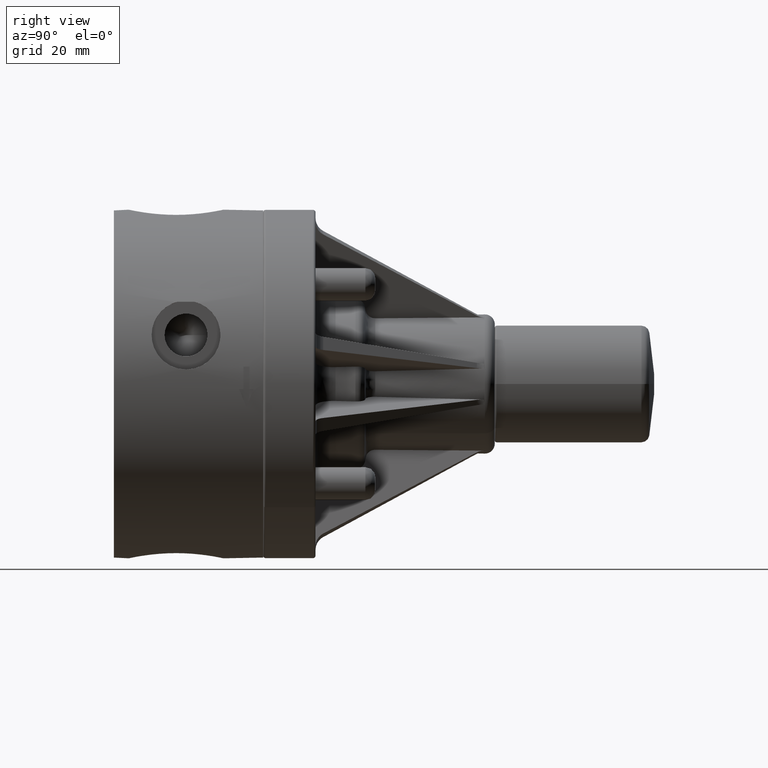
[diagram: clean part render]
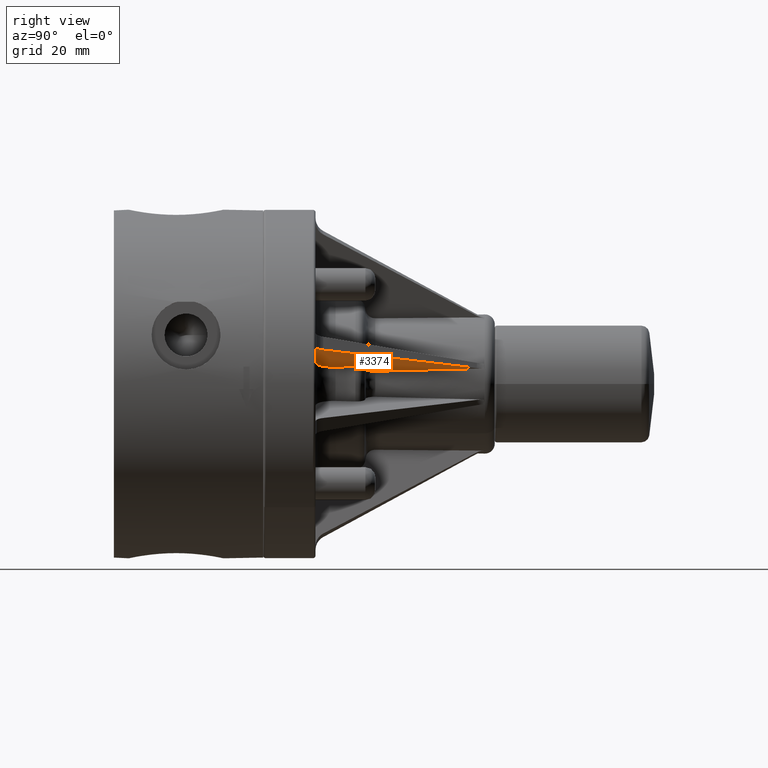
[diagram: same view with one face highlighted and labeled with its STEP entity id]
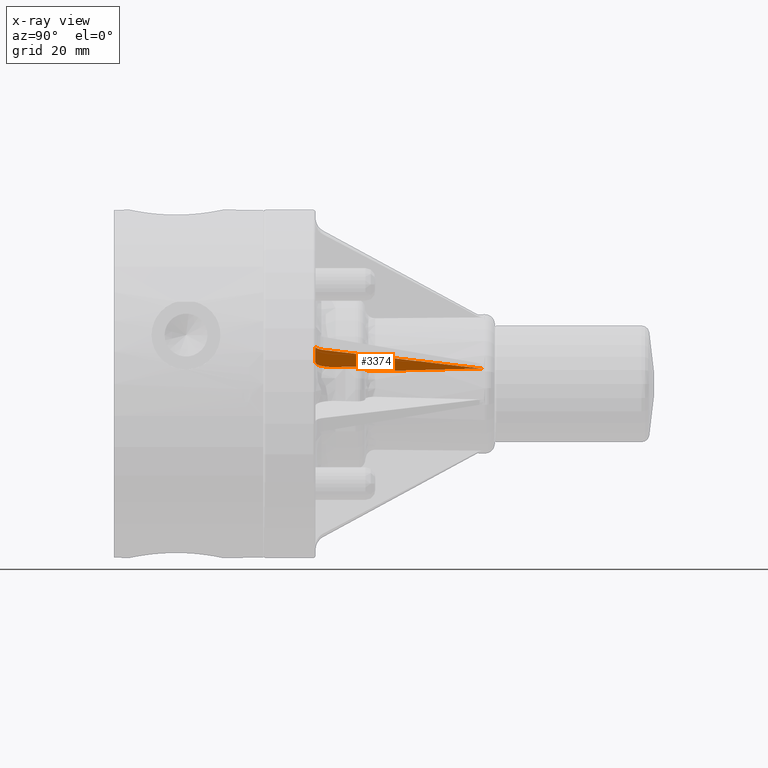
[diagram: x-ray of the same camera — body ghosted, the highlighted face saturated]
A machine part, right view. The second image highlights one B-rep face of the part: STEP entity #3374.
The next image is the same camera in x-ray: the body ghosted, the highlighted face saturated — about 0% of this face is hidden behind the body in this view.
In plain terms, the highlighted planar face has unit normal (0.2587, 0.0262, -0.9656).
Its self-contained STEP definition (entity closure, byte-faithful):
#1554=CARTESIAN_POINT('',(0.682343417455202,3.716826314709518,0.156228872669417));
#1555=VERTEX_POINT('',#1554);
#1563=CARTESIAN_POINT('',(0.688162459202932,2.625000000000000,0.128189039093734));
#1564=VERTEX_POINT('',#1563);
#1565=CARTESIAN_POINT('',(9.744670E-016,4.698192150791793,4.177302E-016));
#1566=DIRECTION('',(0.258730354279914,0.026176948307873,-0.965594827632935));
#1567=DIRECTION('',(0.006775092764742,-0.999657324975557,-0.025284990424009));
#1568=AXIS2_PLACEMENT_3D('',#1565,#1566,#1567);
#1569=ELLIPSE('',#1568,26.741085009877150,0.700000000000000);
#1570=EDGE_CURVE('',#1555,#1564,#1569,.T.);
#2542=CARTESIAN_POINT('',(0.883841446146808,2.225000000000000,0.169777201276020));
#2543=VERTEX_POINT('',#2542);
#2551=CARTESIAN_POINT('',(1.078482179354141,2.024999999999999,0.216509096380593));
#2552=VERTEX_POINT('',#2551);
#2553=CARTESIAN_POINT('',(0.883841446146808,2.225000000000000,0.169777201276020));
#2554=CARTESIAN_POINT('',(0.883902519870662,2.212668316870702,0.169459258183504));
#2555=CARTESIAN_POINT('',(0.885146446709306,2.199198462285150,0.169427404185679));
#2556=CARTESIAN_POINT('',(0.890355738030310,2.172815448862290,0.170107995041851));
#2557=CARTESIAN_POINT('',(0.894321182906108,2.159902306465821,0.170820461882912));
#2558=CARTESIAN_POINT('',(0.903573620516858,2.137104256549482,0.172681597667169));
#2559=CARTESIAN_POINT('',(0.909713059443535,2.125120164942666,0.174001770710345));
#2560=CARTESIAN_POINT('',(0.924291955808276,2.102747807437338,0.177301667193146));
#2561=CARTESIAN_POINT('',(0.932731307186917,2.092359467939641,0.179281360218987));
#2562=CARTESIAN_POINT('',(0.949711267464534,2.074900833874389,0.183357829214253));
#2563=CARTESIAN_POINT('',(0.959817953312510,2.066224809320838,0.185830703442089));
#2564=CARTESIAN_POINT('',(0.981558618551827,2.051263136446866,0.191250491258328));
#2565=CARTESIAN_POINT('',(0.993192489485628,2.044977318333860,0.194197371182600));
#2566=CARTESIAN_POINT('',(1.015325377913796,2.035518886255935,0.199871445877171));
#2567=CARTESIAN_POINT('',(1.027864891449007,2.031478534624186,0.203121865839907));
#2568=CARTESIAN_POINT('',(1.053466908795196,2.026219153416959,0.209839325671551));
#2569=CARTESIAN_POINT('',(1.066529389659599,2.025000000000000,0.213306356034641));
#2570=CARTESIAN_POINT('',(1.078482179354141,2.025000000000000,0.216509096380593));
#2571=B_SPLINE_CURVE_WITH_KNOTS('',3,(#2553,#2554,#2555,#2556,#2557,#2558,#2559,#2560,#2561,#2562,#2563,#2564,#2565,#2566,#2567,#2568,#2569,#2570),.UNSPECIFIED.,.F.,.U.,(4,2,2,2,2,2,2,2,4),(1.506165114365754,1.600164918770038,1.694164723174322,1.788183305215149,1.882201887255975,1.976343395083373,2.070484902910770,2.164778123977573,2.259071345044376),.UNSPECIFIED.);
#2572=EDGE_CURVE('',#2543,#2552,#2571,.T.);
#2614=CARTESIAN_POINT('',(0.882836101336889,2.425000000000000,0.174929752118620));
#2615=VERTEX_POINT('',#2614);
#2623=CARTESIAN_POINT('',(9.744670E-016,4.698192150791791,4.177302E-016));
#2624=DIRECTION('',(0.258730354279914,0.026176948307873,-0.965594827632935));
#2625=DIRECTION('',(0.006775092764742,-0.999657324975557,-0.025284990424009));
#2626=AXIS2_PLACEMENT_3D('',#2623,#2624,#2625);
#2627=ELLIPSE('',#2626,34.381395012699173,0.899999999999999);
#2628=EDGE_CURVE('',#2615,#2543,#2627,.T.);
#2648=CARTESIAN_POINT('',(0.785511766587942,2.525000000000000,0.151562741305010));
#2649=VERTEX_POINT('',#2648);
#2657=CARTESIAN_POINT('',(0.785511766587942,2.525000000000000,0.151562741305010));
#2658=CARTESIAN_POINT('',(0.797468156378785,2.525000000000000,0.154766446293858));
#2659=CARTESIAN_POINT('',(0.811560618327809,2.522107735331143,0.158464101778168));
#2660=CARTESIAN_POINT('',(0.833694307081620,2.512648294680131,0.164138363577274));
#2661=CARTESIAN_POINT('',(0.845655331111156,2.504417600930553,0.167120178990422));
#2662=CARTESIAN_POINT('',(0.862631384190244,2.486959886403183,0.171195625983357));
#2663=CARTESIAN_POINT('',(0.870652870378624,2.474649469832382,0.173011245511319));
#2664=CARTESIAN_POINT('',(0.879905528031790,2.451851543244706,0.174872443599162));
#2665=CARTESIAN_POINT('',(0.882773194903623,2.437332582950759,0.175247228531984));
#2666=CARTESIAN_POINT('',(0.882836101336889,2.425000000000000,0.174929752118620));
#2667=B_SPLINE_CURVE_WITH_KNOTS('',3,(#2657,#2658,#2659,#2660,#2661,#2662,#2663,#2664,#2665,#2666),.UNSPECIFIED.,.F.,.U.,(4,2,2,2,4),(1.130573358054646,1.224894979577330,1.319016811912599,1.413028357341440,1.507034994616227),.UNSPECIFIED.);
#2668=EDGE_CURVE('',#2649,#2615,#2667,.T.);
#2711=CARTESIAN_POINT('',(0.688162459202931,2.625000000000000,0.128189039093734));
#2712=CARTESIAN_POINT('',(0.688221763779662,2.612670159398392,0.127870671909976));
#2713=CARTESIAN_POINT('',(0.691086109678909,2.598153870403675,0.128244639408892));
#2714=CARTESIAN_POINT('',(0.700337038189733,2.575357319234435,0.130105411461569));
#2715=CARTESIAN_POINT('',(0.708360636729014,2.563047231230306,0.131921605899579));
#2716=CARTESIAN_POINT('',(0.725343441787702,2.545587286834391,0.135998801629015));
#2717=CARTESIAN_POINT('',(0.737311355469627,2.537354889651928,0.138982416939469));
#2718=CARTESIAN_POINT('',(0.759454529887154,2.527893656764099,0.144659171827575));
#2719=CARTESIAN_POINT('',(0.773551489720114,2.525000000000000,0.148357994777023));
#2720=CARTESIAN_POINT('',(0.785511766587944,2.525000000000000,0.151562741305011));
#2721=B_SPLINE_CURVE_WITH_KNOTS('',3,(#2711,#2712,#2713,#2714,#2715,#2716,#2717,#2718,#2719,#2720),.UNSPECIFIED.,.F.,.U.,(4,2,2,2,4),(0.753301487620377,0.847287274372898,0.941304801049613,1.035470244376007,1.129822530289097),.UNSPECIFIED.);
#2722=EDGE_CURVE('',#1564,#2649,#2721,.T.);
#3240=CARTESIAN_POINT('',(1.664127680645382,2.025000000000000,0.373432335502501));
#3241=VERTEX_POINT('',#3240);
#3242=CARTESIAN_POINT('',(1.536881267281477,2.102278556963049,0.341431757273110));
#3243=VERTEX_POINT('',#3242);
#3244=CARTESIAN_POINT('',(1.663111068363032,2.175000000000000,0.377226384191830));
#3245=DIRECTION('',(-0.258730354279914,-0.026176948307873,0.965594827632935));
#3246=DIRECTION('',(0.006775092764863,-0.999657324975557,-0.025284990423976));
#3247=AXIS2_PLACEMENT_3D('',#3244,#3245,#3246);
#3248=ELLIPSE('',#3247,0.150051418873630,0.150000000000000);
#3249=EDGE_CURVE('',#3241,#3243,#3248,.F.);
#3283=CARTESIAN_POINT('',(0.701026602313353,3.643880267457619,0.159257474361929));
#3284=VERTEX_POINT('',#3283);
#3285=CARTESIAN_POINT('',(0.701026602313353,3.643880267457619,0.159257474361929));
#3286=DIRECTION('',(0.474093470997399,-0.874390413136919,0.103328535128913));
#3287=VECTOR('',#3286,1.763058797687406);
#3288=LINE('',#3285,#3287);
#3289=EDGE_CURVE('',#3243,#3284,#3288,.F.);
#3340=CARTESIAN_POINT('',(0.682343417455202,3.716826314709518,0.156228872669416));
#3341=CARTESIAN_POINT('',(0.682417755588203,3.704115081824290,0.155904194299456));
#3342=CARTESIAN_POINT('',(0.684051595456809,3.691453213696556,0.155998721421980));
#3343=CARTESIAN_POINT('',(0.690356583499256,3.666843328579899,0.157020972236859));
#3344=CARTESIAN_POINT('',(0.695001047114622,3.654993450873778,0.157944206345996));
#3345=CARTESIAN_POINT('',(0.701026602313353,3.643880267457618,0.159257474361929));
#3346=B_SPLINE_CURVE_WITH_KNOTS('',3,(#3340,#3341,#3342,#3343,#3344,#3345),.UNSPECIFIED.,.F.,.U.,(4,2,4),(-0.193741069388922,-0.096847422340019,0.0),.UNSPECIFIED.);
#3347=EDGE_CURVE('',#3284,#1555,#3346,.F.);
#3353=CARTESIAN_POINT('',(-1.195440544694281,2.503713207108849,-0.379808908483760));
#3354=DIRECTION('',(0.258730354279914,0.026176948307873,-0.965594827632935));
#3355=DIRECTION('',(-0.965925826289068,2.715256E-016,-0.258819045102521));
#3356=AXIS2_PLACEMENT_3D('',#3353,#3354,#3355);
#3357=PLANE('',#3356);
#3358=CARTESIAN_POINT('',(1.078482179354141,2.025000000000000,0.216509096380593));
#3359=DIRECTION('',(0.965925826289068,0.0,0.258819045102521));
#3360=VECTOR('',#3359,0.606304837651144);
#3361=LINE('',#3358,#3360);
#3362=EDGE_CURVE('',#2552,#3241,#3361,.T.);
#3363=ORIENTED_EDGE('',*,*,#3362,.F.);
#3364=ORIENTED_EDGE('',*,*,#2572,.F.);
#3365=ORIENTED_EDGE('',*,*,#2628,.F.);
#3366=ORIENTED_EDGE('',*,*,#2668,.F.);
#3367=ORIENTED_EDGE('',*,*,#2722,.F.);
#3368=ORIENTED_EDGE('',*,*,#1570,.F.);
#3369=ORIENTED_EDGE('',*,*,#3347,.F.);
#3370=ORIENTED_EDGE('',*,*,#3289,.F.);
#3371=ORIENTED_EDGE('',*,*,#3249,.F.);
#3372=EDGE_LOOP('',(#3363,#3364,#3365,#3366,#3367,#3368,#3369,#3370,#3371));
#3373=FACE_OUTER_BOUND('',#3372,.T.);
#3374=ADVANCED_FACE('',(#3373),#3357,.T.);